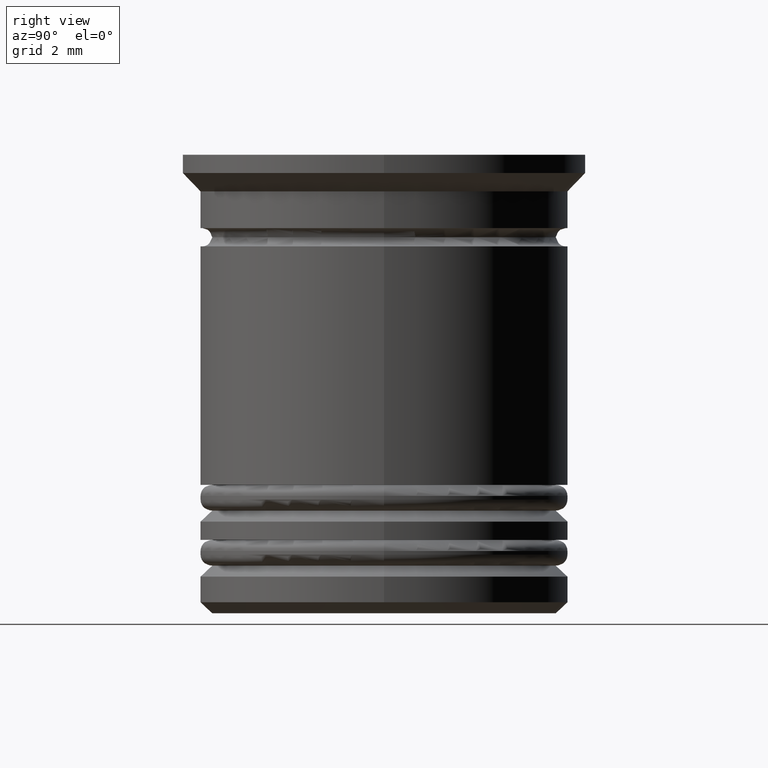
[diagram: clean part render]
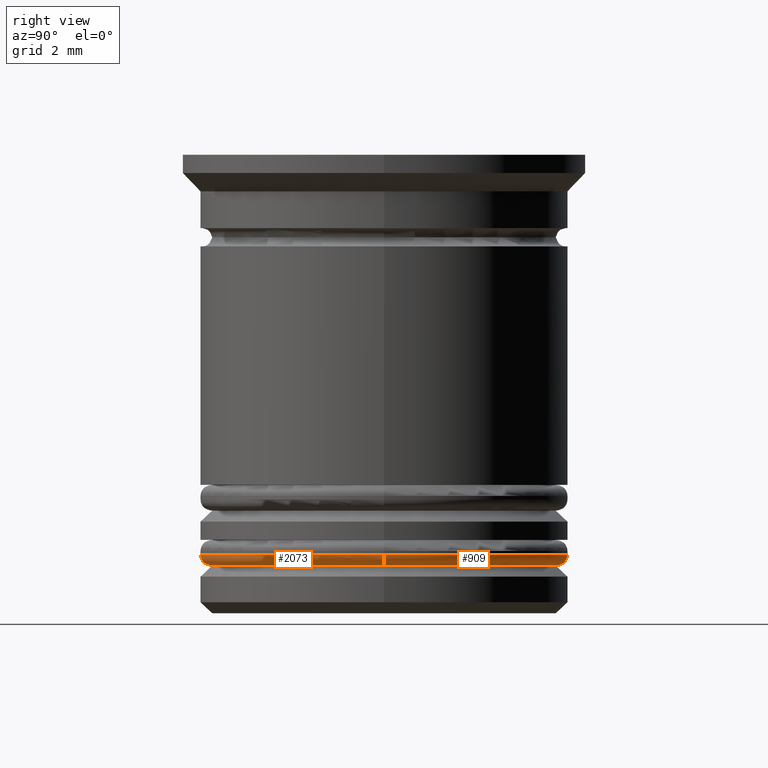
[diagram: same view with one multi-face feature highlighted, each face labeled with its STEP entity id]
A machine part, right view. The highlighted faces form ONE feature: a constant-radius fillet chain: 2 tangent blend faces with common blend radius 0.3 mm. The faces share edges in the B-rep.
Their STEP definitions:
[1] entity #909 (Torus):
#20 = DIRECTION ( 'NONE',  ( -0.000000000000000000, -0.000000000000000000, -1.000000000000000000 ) ) ;
#155 = CARTESIAN_POINT ( 'NONE',  ( -4.700000000000003730, 5.939536975864667899E-16, -11.20000000000000817 ) ) ;
#192 = AXIS2_PLACEMENT_3D ( 'NONE', #650, #20, #1113 ) ;
#454 = DIRECTION ( 'NONE',  ( 1.000000000000000000, 0.000000000000000000, 0.000000000000000000 ) ) ;
#495 = DIRECTION ( 'NONE',  ( 0.000000000000000000, -1.000000000000000000, 0.000000000000000000 ) ) ;
#508 = EDGE_LOOP ( 'NONE', ( #1620, #981, #1084, #859 ) ) ;
#520 = TOROIDAL_SURFACE ( 'NONE', #764, 4.700000000000003730, 0.2999999999999999889 ) ;
#557 = AXIS2_PLACEMENT_3D ( 'NONE', #1936, #495, #1944 ) ;
#650 = CARTESIAN_POINT ( 'NONE',  ( 0.000000000000000000, 0.000000000000000000, -11.20000000000000817 ) ) ;
#764 = AXIS2_PLACEMENT_3D ( 'NONE', #1980, #1834, #1036 ) ;
#859 = ORIENTED_EDGE ( 'NONE', *, *, #1803, .F. ) ;
#871 = CIRCLE ( 'NONE', #1709, 0.2999999999999999334 ) ;
#909 = ADVANCED_FACE ( 'NONE', ( #1241 ), #520, .T. ) ;
#981 = ORIENTED_EDGE ( 'NONE', *, *, #1480, .T. ) ;
#1027 = VERTEX_POINT ( 'NONE', #155 ) ;
#1035 = VERTEX_POINT ( 'NONE', #1236 ) ;
#1036 = DIRECTION ( 'NONE',  ( 1.000000000000000000, 0.000000000000000000, 0.000000000000000000 ) ) ;
#1084 = ORIENTED_EDGE ( 'NONE', *, *, #1148, .F. ) ;
#1113 = DIRECTION ( 'NONE',  ( 1.000000000000000000, 0.000000000000000000, 0.000000000000000000 ) ) ;
#1142 = DIRECTION ( 'NONE',  ( -1.000000000000000000, 1.224646799147353207E-16, 0.000000000000000000 ) ) ;
#1148 = EDGE_CURVE ( 'NONE', #1351, #1035, #1507, .T. ) ;
#1236 = CARTESIAN_POINT ( 'NONE',  ( -5.000000000000003553, 6.123233995736769241E-16, -10.90000000000000924 ) ) ;
#1241 = FACE_OUTER_BOUND ( 'NONE', #508, .T. ) ;
#1269 = CARTESIAN_POINT ( 'NONE',  ( 0.000000000000000000, 0.000000000000000000, -10.90000000000000924 ) ) ;
#1351 = VERTEX_POINT ( 'NONE', #1527 ) ;
#1388 = EDGE_CURVE ( 'NONE', #1027, #1750, #1997, .T. ) ;
#1480 = EDGE_CURVE ( 'NONE', #1027, #1035, #871, .T. ) ;
#1507 = CIRCLE ( 'NONE', #1875, 5.000000000000003553 ) ;
#1527 = CARTESIAN_POINT ( 'NONE',  ( 5.000000000000003553, 0.000000000000000000, -10.90000000000000924 ) ) ;
#1620 = ORIENTED_EDGE ( 'NONE', *, *, #1388, .F. ) ;
#1636 = CARTESIAN_POINT ( 'NONE',  ( 4.700000000000003730, 0.000000000000000000, -11.20000000000000817 ) ) ;
#1709 = AXIS2_PLACEMENT_3D ( 'NONE', #1759, #2066, #1142 ) ;
#1750 = VERTEX_POINT ( 'NONE', #1636 ) ;
#1759 = CARTESIAN_POINT ( 'NONE',  ( -4.700000000000003730, 5.755839955992564585E-16, -10.90000000000000924 ) ) ;
#1803 = EDGE_CURVE ( 'NONE', #1750, #1351, #1937, .T. ) ;
#1834 = DIRECTION ( 'NONE',  ( 0.000000000000000000, 0.000000000000000000, 1.000000000000000000 ) ) ;
#1875 = AXIS2_PLACEMENT_3D ( 'NONE', #1269, #1901, #454 ) ;
#1901 = DIRECTION ( 'NONE',  ( 0.000000000000000000, 0.000000000000000000, 1.000000000000000000 ) ) ;
#1936 = CARTESIAN_POINT ( 'NONE',  ( 4.700000000000003730, 0.000000000000000000, -10.90000000000000924 ) ) ;
#1937 = CIRCLE ( 'NONE', #557, 0.2999999999999999334 ) ;
#1944 = DIRECTION ( 'NONE',  ( 0.000000000000000000, 0.000000000000000000, -1.000000000000000000 ) ) ;
#1980 = CARTESIAN_POINT ( 'NONE',  ( 0.000000000000000000, 0.000000000000000000, -10.90000000000000924 ) ) ;
#1997 = CIRCLE ( 'NONE', #192, 4.700000000000003730 ) ;
#2066 = DIRECTION ( 'NONE',  ( 1.224646799147353207E-16, 1.000000000000000000, -0.000000000000000000 ) ) ;
[2] entity #2073 (Torus):
#112 = AXIS2_PLACEMENT_3D ( 'NONE', #480, #817, #1133 ) ;
#155 = CARTESIAN_POINT ( 'NONE',  ( -4.700000000000003730, 5.939536975864667899E-16, -11.20000000000000817 ) ) ;
#307 = DIRECTION ( 'NONE',  ( 1.000000000000000000, 0.000000000000000000, 0.000000000000000000 ) ) ;
#416 = EDGE_CURVE ( 'NONE', #1035, #1351, #450, .T. ) ;
#437 = AXIS2_PLACEMENT_3D ( 'NONE', #956, #964, #307 ) ;
#450 = CIRCLE ( 'NONE', #1635, 5.000000000000003553 ) ;
#453 = DIRECTION ( 'NONE',  ( 0.000000000000000000, 0.000000000000000000, 1.000000000000000000 ) ) ;
#480 = CARTESIAN_POINT ( 'NONE',  ( 0.000000000000000000, 0.000000000000000000, -10.90000000000000924 ) ) ;
#495 = DIRECTION ( 'NONE',  ( 0.000000000000000000, -1.000000000000000000, 0.000000000000000000 ) ) ;
#512 = EDGE_LOOP ( 'NONE', ( #1967, #2062, #1019, #1168 ) ) ;
#557 = AXIS2_PLACEMENT_3D ( 'NONE', #1936, #495, #1944 ) ;
#616 = CARTESIAN_POINT ( 'NONE',  ( 0.000000000000000000, 0.000000000000000000, -10.90000000000000924 ) ) ;
#817 = DIRECTION ( 'NONE',  ( 0.000000000000000000, 0.000000000000000000, 1.000000000000000000 ) ) ;
#871 = CIRCLE ( 'NONE', #1709, 0.2999999999999999334 ) ;
#926 = TOROIDAL_SURFACE ( 'NONE', #112, 4.700000000000003730, 0.2999999999999999889 ) ;
#956 = CARTESIAN_POINT ( 'NONE',  ( 0.000000000000000000, 0.000000000000000000, -11.20000000000000817 ) ) ;
#964 = DIRECTION ( 'NONE',  ( -0.000000000000000000, -0.000000000000000000, -1.000000000000000000 ) ) ;
#1013 = FACE_OUTER_BOUND ( 'NONE', #512, .T. ) ;
#1019 = ORIENTED_EDGE ( 'NONE', *, *, #1803, .T. ) ;
#1027 = VERTEX_POINT ( 'NONE', #155 ) ;
#1035 = VERTEX_POINT ( 'NONE', #1236 ) ;
#1133 = DIRECTION ( 'NONE',  ( 1.000000000000000000, 0.000000000000000000, 0.000000000000000000 ) ) ;
#1142 = DIRECTION ( 'NONE',  ( -1.000000000000000000, 1.224646799147353207E-16, 0.000000000000000000 ) ) ;
#1168 = ORIENTED_EDGE ( 'NONE', *, *, #416, .F. ) ;
#1236 = CARTESIAN_POINT ( 'NONE',  ( -5.000000000000003553, 6.123233995736769241E-16, -10.90000000000000924 ) ) ;
#1351 = VERTEX_POINT ( 'NONE', #1527 ) ;
#1358 = CIRCLE ( 'NONE', #437, 4.700000000000003730 ) ;
#1480 = EDGE_CURVE ( 'NONE', #1027, #1035, #871, .T. ) ;
#1527 = CARTESIAN_POINT ( 'NONE',  ( 5.000000000000003553, 0.000000000000000000, -10.90000000000000924 ) ) ;
#1635 = AXIS2_PLACEMENT_3D ( 'NONE', #616, #453, #1716 ) ;
#1636 = CARTESIAN_POINT ( 'NONE',  ( 4.700000000000003730, 0.000000000000000000, -11.20000000000000817 ) ) ;
#1709 = AXIS2_PLACEMENT_3D ( 'NONE', #1759, #2066, #1142 ) ;
#1716 = DIRECTION ( 'NONE',  ( 1.000000000000000000, 0.000000000000000000, 0.000000000000000000 ) ) ;
#1750 = VERTEX_POINT ( 'NONE', #1636 ) ;
#1759 = CARTESIAN_POINT ( 'NONE',  ( -4.700000000000003730, 5.755839955992564585E-16, -10.90000000000000924 ) ) ;
#1803 = EDGE_CURVE ( 'NONE', #1750, #1351, #1937, .T. ) ;
#1936 = CARTESIAN_POINT ( 'NONE',  ( 4.700000000000003730, 0.000000000000000000, -10.90000000000000924 ) ) ;
#1937 = CIRCLE ( 'NONE', #557, 0.2999999999999999334 ) ;
#1944 = DIRECTION ( 'NONE',  ( 0.000000000000000000, 0.000000000000000000, -1.000000000000000000 ) ) ;
#1952 = EDGE_CURVE ( 'NONE', #1750, #1027, #1358, .T. ) ;
#1967 = ORIENTED_EDGE ( 'NONE', *, *, #1480, .F. ) ;
#2062 = ORIENTED_EDGE ( 'NONE', *, *, #1952, .F. ) ;
#2066 = DIRECTION ( 'NONE',  ( 1.224646799147353207E-16, 1.000000000000000000, -0.000000000000000000 ) ) ;
#2073 = ADVANCED_FACE ( 'NONE', ( #1013 ), #926, .T. ) ;